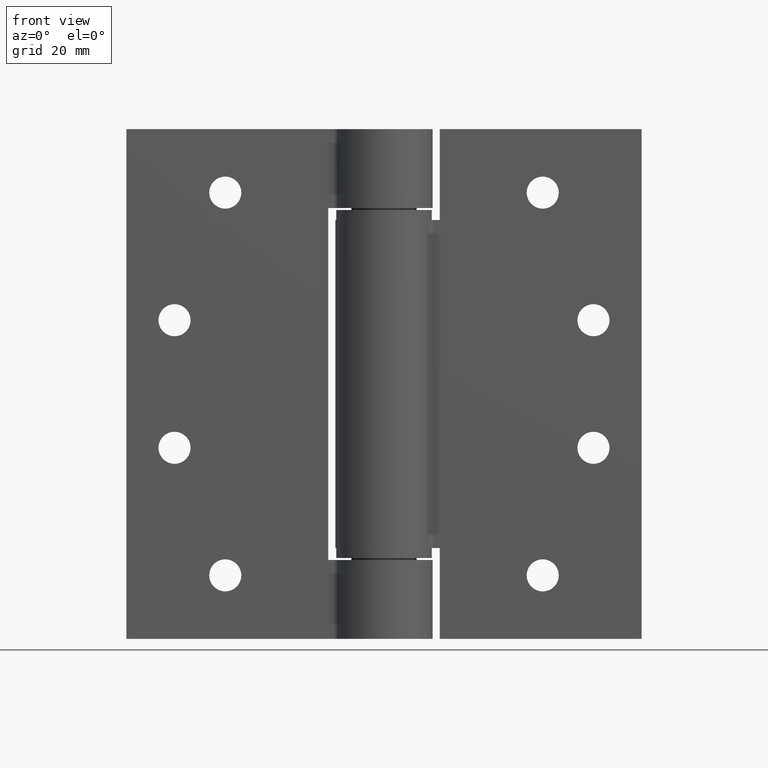
[diagram: clean part render]
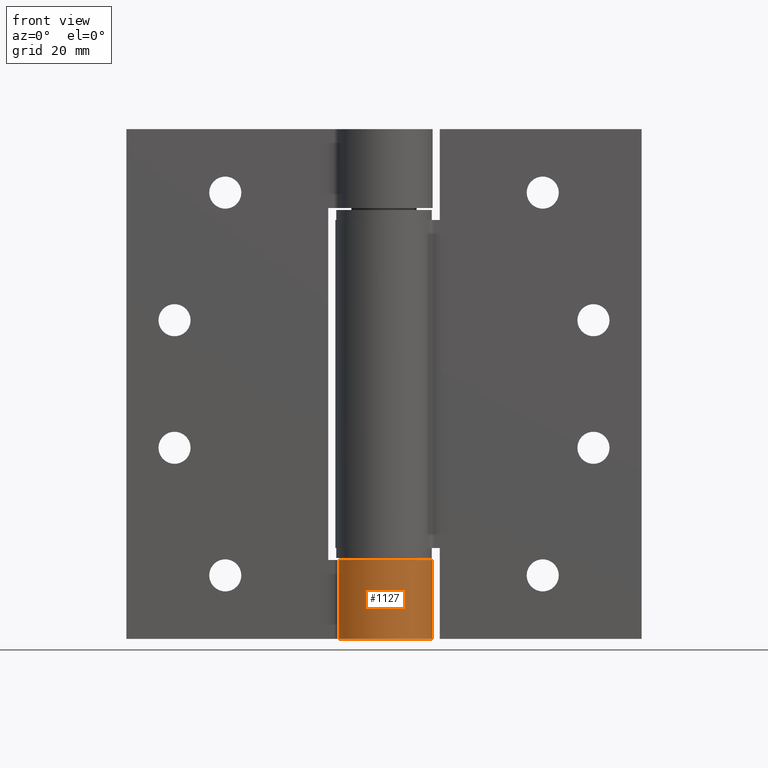
[diagram: same view with one face highlighted and labeled with its STEP entity id]
A machine part, front view. The second image highlights one B-rep face of the part: STEP entity #1127.
In plain terms, the highlighted cylindrical surface (partial cylindrical patch) has radius 9.7 mm, axis along (0, -0, -1).
Its self-contained STEP definition (entity closure, byte-faithful):
#129=CYLINDRICAL_SURFACE('',#1237,9.7);
#170=CIRCLE('',#1223,9.7);
#180=CIRCLE('',#1238,9.7);
#237=FACE_OUTER_BOUND('',#325,.T.);
#325=EDGE_LOOP('',(#926,#927,#928,#929));
#431=LINE('',#1851,#508);
#434=LINE('',#1863,#511);
#508=VECTOR('',#1484,15.7);
#511=VECTOR('',#1499,15.7);
#588=VERTEX_POINT('',#1817);
#589=VERTEX_POINT('',#1819);
#602=VERTEX_POINT('',#1849);
#605=VERTEX_POINT('',#1861);
#707=EDGE_CURVE('',#589,#588,#170,.T.);
#723=EDGE_CURVE('',#588,#602,#431,.T.);
#728=EDGE_CURVE('',#605,#602,#180,.T.);
#729=EDGE_CURVE('',#605,#589,#434,.T.);
#926=ORIENTED_EDGE('',*,*,#707,.T.);
#927=ORIENTED_EDGE('',*,*,#723,.T.);
#928=ORIENTED_EDGE('',*,*,#728,.F.);
#929=ORIENTED_EDGE('',*,*,#729,.T.);
#1127=ADVANCED_FACE('',(#237),#129,.T.);
#1223=AXIS2_PLACEMENT_3D('',#1820,#1456,#1457);
#1237=AXIS2_PLACEMENT_3D('',#1860,#1495,#1496);
#1238=AXIS2_PLACEMENT_3D('',#1862,#1497,#1498);
#1456=DIRECTION('center_axis',(-1.65868246999572E-16,0.,1.));
#1457=DIRECTION('ref_axis',(0.999390827019096,0.0348994967025013,1.6576720454511E-16));
#1484=DIRECTION('',(0.,0.,1.));
#1495=DIRECTION('center_axis',(0.,0.,1.));
#1496=DIRECTION('ref_axis',(-0.984880210934085,0.173236745843461,0.));
#1497=DIRECTION('center_axis',(0.,0.,1.));
#1498=DIRECTION('ref_axis',(0.999390827019096,0.0348994967025013,0.));
#1499=DIRECTION('',(0.,0.,-1.));
#1817=CARTESIAN_POINT('',(8.99671629035193,-3.62616822429907,35.05));
#1819=CARTESIAN_POINT('',(9.69409102208523,0.338525118014262,35.05));
#1820=CARTESIAN_POINT('Origin',(0.,0.,35.05));
#1849=CARTESIAN_POINT('',(8.99671629035193,-3.62616822429907,50.75));
#1851=CARTESIAN_POINT('',(8.99671629035193,-3.62616822429907,0.));
#1860=CARTESIAN_POINT('Origin',(0.,0.,0.));
#1861=CARTESIAN_POINT('',(9.69409102208523,0.338525118014262,50.75));
#1862=CARTESIAN_POINT('Origin',(0.,0.,50.75));
#1863=CARTESIAN_POINT('',(9.69409102208523,0.338525118014262,0.));